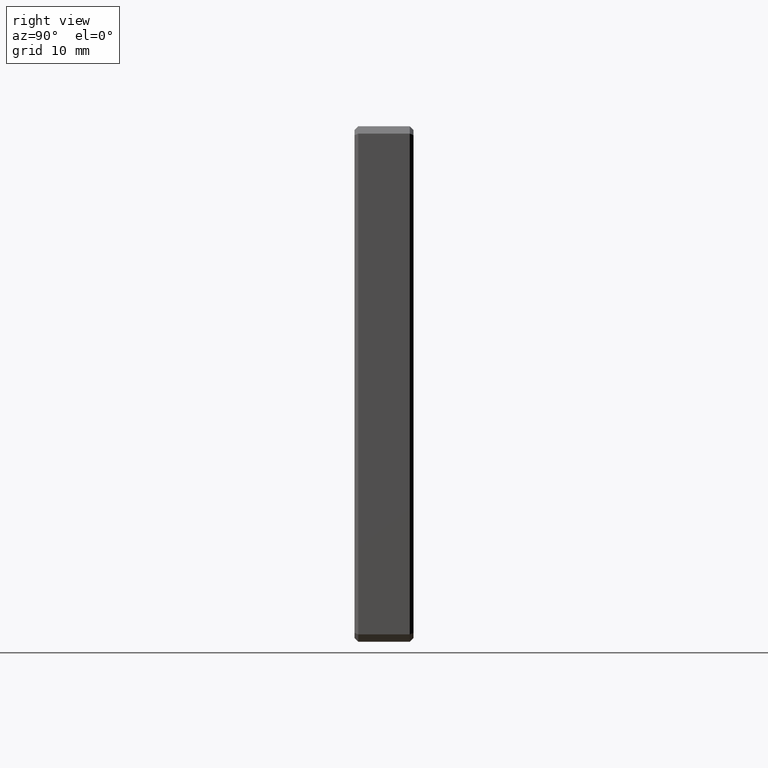
[diagram: clean part render]
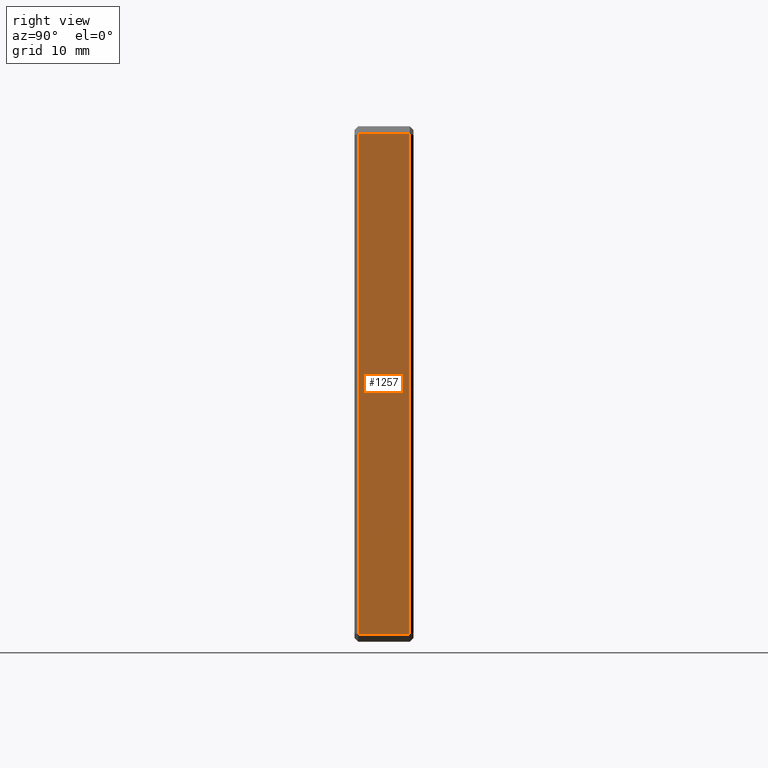
[diagram: same view with one face highlighted and labeled with its STEP entity id]
A machine part, right view. The second image highlights one B-rep face of the part: STEP entity #1257.
In plain terms, the highlighted planar face has unit normal (-1, 0, 0).
Its self-contained STEP definition (entity closure, byte-faithful):
#43 = CARTESIAN_POINT ( 'NONE',  ( 34.99999999999999289, 8.000000000000000000, -34.00000000000000711 ) ) ;
#173 = VERTEX_POINT ( 'NONE', #948 ) ;
#307 = EDGE_CURVE ( 'NONE', #173, #753, #1521, .T. ) ;
#360 = PLANE ( 'NONE',  #2232 ) ;
#365 = LINE ( 'NONE', #2715, #3254 ) ;
#512 = DIRECTION ( 'NONE',  ( 0.000000000000000000, 1.000000000000000000, 0.000000000000000000 ) ) ;
#753 = VERTEX_POINT ( 'NONE', #1308 ) ;
#791 = CARTESIAN_POINT ( 'NONE',  ( 34.99999999999999289, 0.5000000000000143219, -35.00000000000000711 ) ) ;
#847 = DIRECTION ( 'NONE',  ( 1.982541115402065110E-16, 0.000000000000000000, 1.000000000000000000 ) ) ;
#948 = CARTESIAN_POINT ( 'NONE',  ( 35.00000000000000711, 0.5000000000000143219, 34.00000000000000711 ) ) ;
#1058 = LINE ( 'NONE', #43, #2078 ) ;
#1112 = DIRECTION ( 'NONE',  ( 1.982541115402065110E-16, 0.000000000000000000, 1.000000000000000000 ) ) ;
#1129 = VERTEX_POINT ( 'NONE', #2470 ) ;
#1257 = ADVANCED_FACE ( 'NONE', ( #1446 ), #360, .F. ) ;
#1294 = VECTOR ( 'NONE', #2373, 1000.000000000000000 ) ;
#1308 = CARTESIAN_POINT ( 'NONE',  ( 34.99999999999999289, 0.5000000000000143219, -34.00000000000000711 ) ) ;
#1340 = VERTEX_POINT ( 'NONE', #3058 ) ;
#1446 = FACE_OUTER_BOUND ( 'NONE', #2179, .T. ) ;
#1521 = LINE ( 'NONE', #791, #1294 ) ;
#1972 = EDGE_CURVE ( 'NONE', #1340, #1129, #365, .T. ) ;
#1982 = DIRECTION ( 'NONE',  ( -1.000000000000000000, 0.000000000000000000, 1.982541115402065110E-16 ) ) ;
#2078 = VECTOR ( 'NONE', #512, 1000.000000000000000 ) ;
#2179 = EDGE_LOOP ( 'NONE', ( #2756, #3070, #2612, #2722 ) ) ;
#2232 = AXIS2_PLACEMENT_3D ( 'NONE', #2502, #1982, #1112 ) ;
#2373 = DIRECTION ( 'NONE',  ( -1.982541115402065110E-16, 0.000000000000000000, -1.000000000000000000 ) ) ;
#2470 = CARTESIAN_POINT ( 'NONE',  ( 35.00000000000000711, 7.500000000000013323, 34.00000000000000711 ) ) ;
#2502 = CARTESIAN_POINT ( 'NONE',  ( 34.99999999999999289, 8.000000000000000000, -35.00000000000000711 ) ) ;
#2601 = CARTESIAN_POINT ( 'NONE',  ( 35.00000000000000711, 8.000000000000000000, 34.00000000000000711 ) ) ;
#2612 = ORIENTED_EDGE ( 'NONE', *, *, #3045, .T. ) ;
#2715 = CARTESIAN_POINT ( 'NONE',  ( 35.00000000000000711, 7.500000000000013323, 34.00000000000000711 ) ) ;
#2722 = ORIENTED_EDGE ( 'NONE', *, *, #307, .T. ) ;
#2754 = EDGE_CURVE ( 'NONE', #753, #1340, #1058, .T. ) ;
#2756 = ORIENTED_EDGE ( 'NONE', *, *, #2754, .T. ) ;
#2790 = LINE ( 'NONE', #2601, #3259 ) ;
#3045 = EDGE_CURVE ( 'NONE', #1129, #173, #2790, .T. ) ;
#3058 = CARTESIAN_POINT ( 'NONE',  ( 34.99999999999999289, 7.500000000000013323, -34.00000000000000711 ) ) ;
#3070 = ORIENTED_EDGE ( 'NONE', *, *, #1972, .T. ) ;
#3254 = VECTOR ( 'NONE', #847, 1000.000000000000000 ) ;
#3259 = VECTOR ( 'NONE', #3362, 1000.000000000000000 ) ;
#3362 = DIRECTION ( 'NONE',  ( 0.000000000000000000, -1.000000000000000000, 0.000000000000000000 ) ) ;